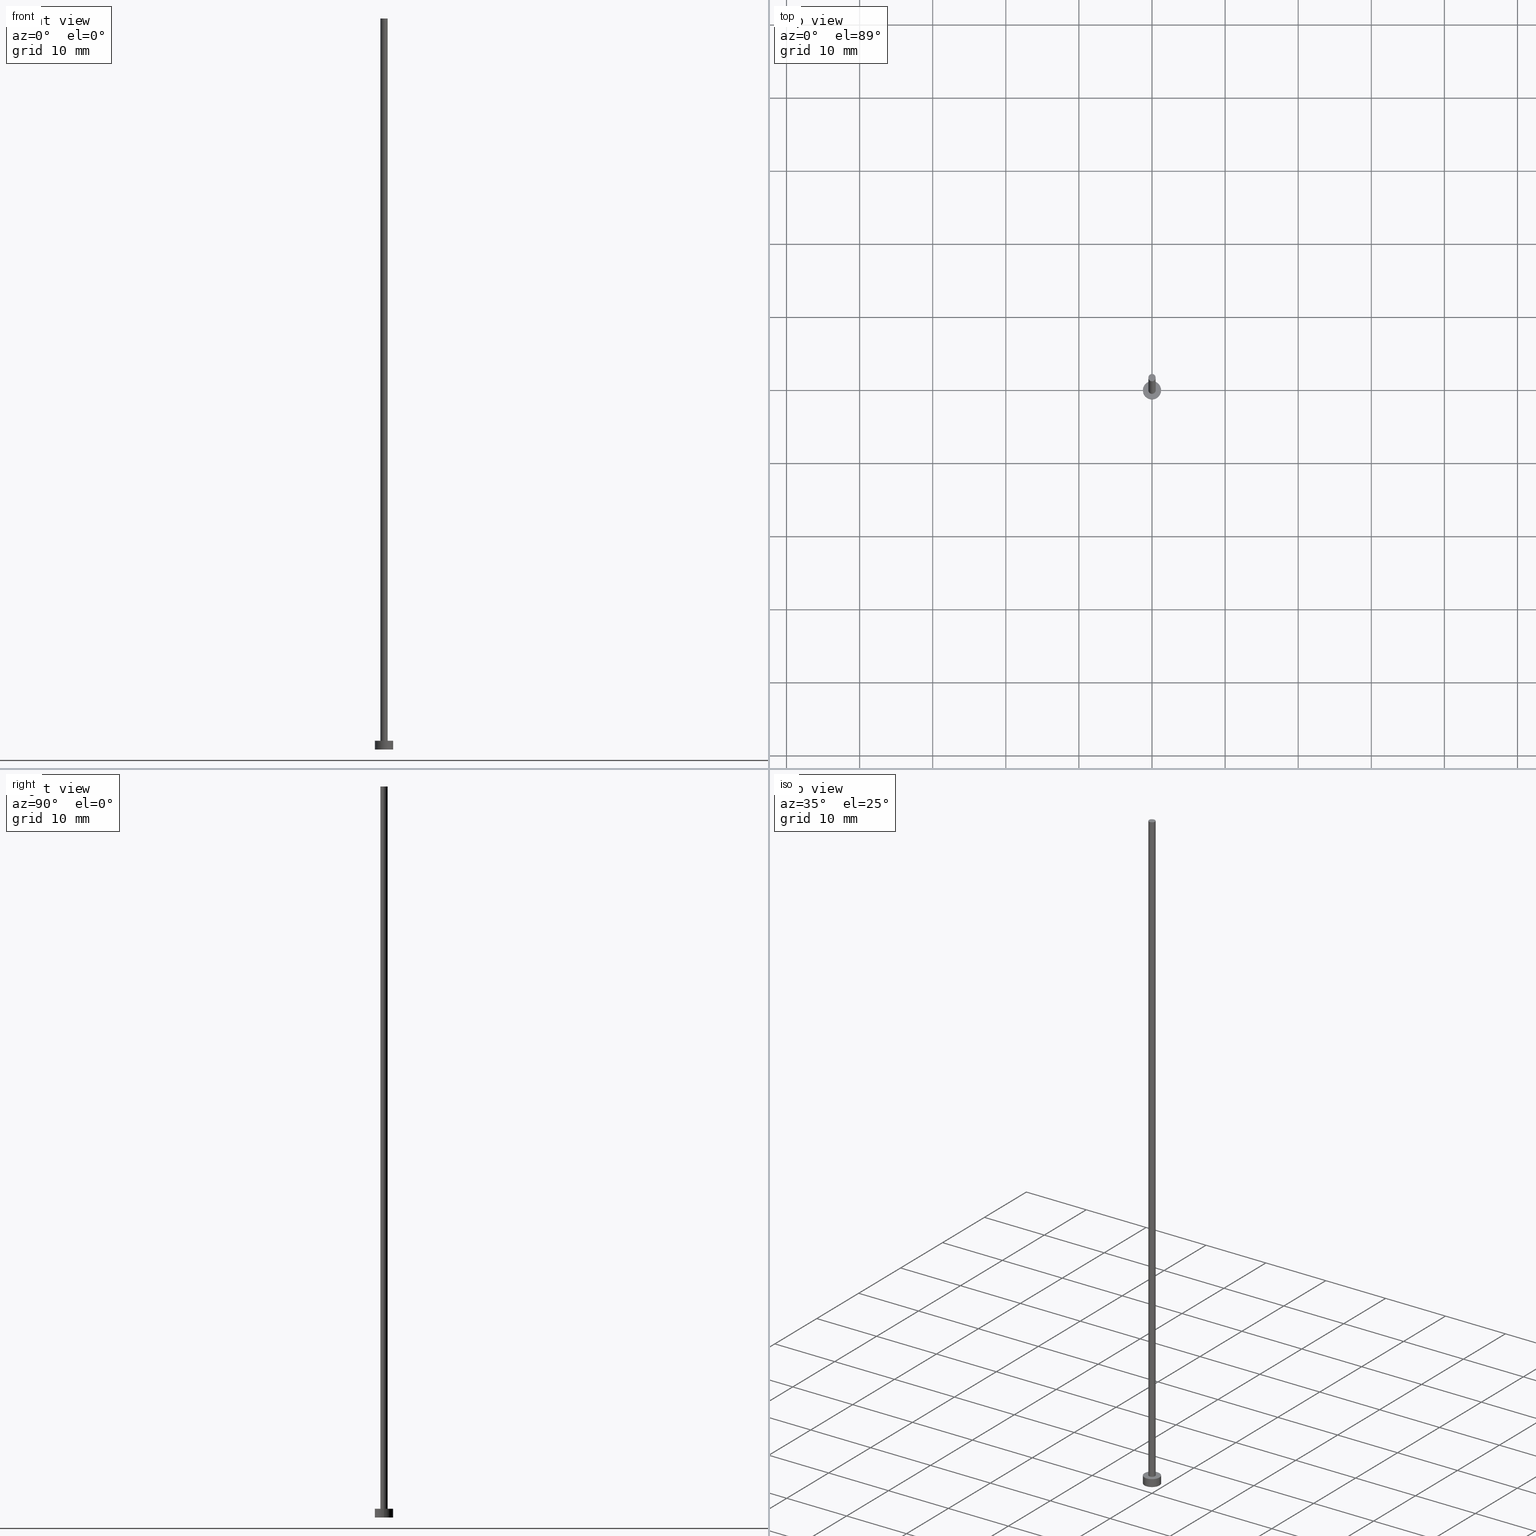
[diagram: canonical four-view strip — front | top / right | iso, engineering-drawing reading convention]
A machine part, canonical four-view strip (front | top / right | iso — engineering-drawing reading convention). The complete STEP part file that produces these views, byte-faithful:
ISO-10303-21;
HEADER;
FILE_DESCRIPTION (( 'STEP AP203' ),
    '1' );
FILE_NAME ('1bcf.STEP',
    '2023-02-12T13:00:44',
    ( '' ),
    ( '' ),
    'SwSTEP 2.0',
    'SolidWorks 2019',
    '' );
FILE_SCHEMA (( 'CONFIG_CONTROL_DESIGN' ));
ENDSEC;

DATA;
#1 = ORIENTED_EDGE ( 'NONE', *, *, #106, .F. ) ;
#2 = DIRECTION ( 'NONE',  ( 0.000000000000000000, 0.000000000000000000, 1.000000000000000000 ) ) ;
#3 = ORIENTED_EDGE ( 'NONE', *, *, #55, .F. ) ;
#4 = PERSON_AND_ORGANIZATION ( #205, #72 ) ;
#5 = ORIENTED_EDGE ( 'NONE', *, *, #201, .F. ) ;
#6 = PERSON_AND_ORGANIZATION ( #205, #72 ) ;
#7 = CARTESIAN_POINT ( 'NONE',  ( 0.000000000000000000, 0.000000000000000000, 1.199999999999999956 ) ) ;
#8 = AXIS2_PLACEMENT_3D ( 'NONE', #221, #184, #54 ) ;
#9 = CC_DESIGN_PERSON_AND_ORGANIZATION_ASSIGNMENT ( #61, #140, ( #56 ) ) ;
#10 = AXIS2_PLACEMENT_3D ( 'NONE', #91, #68, #93 ) ;
#11 = DIRECTION ( 'NONE',  ( 1.000000000000000000, 0.000000000000000000, -0.000000000000000000 ) ) ;
#12 = AXIS2_PLACEMENT_3D ( 'NONE', #165, #29, #217 ) ;
#13 = CARTESIAN_POINT ( 'NONE',  ( -0.5000000000000000000, 0.000000000000000000, 1.199999999999999956 ) ) ;
#14 = CIRCLE ( 'NONE', #84, 1.250000000000000000 ) ;
#15 = CARTESIAN_POINT ( 'NONE',  ( -1.250000000000000000, 0.000000000000000000, 1.199999999999999956 ) ) ;
#16 = VERTEX_POINT ( 'NONE', #175 ) ;
#17 = AXIS2_PLACEMENT_3D ( 'NONE', #142, #122, #176 ) ;
#18 = DATE_TIME_ROLE ( 'creation_date' ) ;
#19 = DIRECTION ( 'NONE',  ( -0.000000000000000000, -0.000000000000000000, -1.000000000000000000 ) ) ;
#20 = DATE_AND_TIME ( #41, #189 ) ;
#21 = CARTESIAN_POINT ( 'NONE',  ( 0.000000000000000000, 0.000000000000000000, 1.199999999999999956 ) ) ;
#22 = APPLICATION_CONTEXT ( 'configuration controlled 3d designs of mechanical parts and assemblies' ) ;
#23 = CARTESIAN_POINT ( 'NONE',  ( 0.000000000000000000, 0.000000000000000000, 0.000000000000000000 ) ) ;
#24 = ORIENTED_EDGE ( 'NONE', *, *, #161, .F. ) ;
#25 = MECHANICAL_CONTEXT ( 'NONE', #247, 'mechanical' ) ;
#26 = CARTESIAN_POINT ( 'NONE',  ( -1.250000000000000000, 0.000000000000000000, 1.199999999999999956 ) ) ;
#27 = APPROVAL ( #64, 'NEUR�EN�' ) ;
#28 = COORDINATED_UNIVERSAL_TIME_OFFSET ( 1, 0, .AHEAD. ) ;
#29 = DIRECTION ( 'NONE',  ( 0.000000000000000000, 0.000000000000000000, 1.000000000000000000 ) ) ;
#30 = PRODUCT ( '1bcf', '1bcf', '', ( #25 ) ) ;
#31 = DIRECTION ( 'NONE',  ( 1.000000000000000000, 0.000000000000000000, 0.000000000000000000 ) ) ;
#32 = CIRCLE ( 'NONE', #10, 0.5000000000000000000 ) ;
#33 = ADVANCED_FACE ( 'NONE', ( #45 ), #192, .T. ) ;
#34 = VERTEX_POINT ( 'NONE', #162 ) ;
#35 = EDGE_CURVE ( 'NONE', #16, #190, #232, .T. ) ;
#36 = CC_DESIGN_APPROVAL ( #27, ( #56 ) ) ;
#37 = DIRECTION ( 'NONE',  ( -1.000000000000000000, 0.000000000000000000, 0.000000000000000000 ) ) ;
#38 = ORIENTED_EDGE ( 'NONE', *, *, #126, .F. ) ;
#39 = AXIS2_PLACEMENT_3D ( 'NONE', #207, #132, #37 ) ;
#40 = EDGE_LOOP ( 'NONE', ( #226, #249, #90, #3 ) ) ;
#41 = CALENDAR_DATE ( 2023, 12, 2 ) ;
#42 = CARTESIAN_POINT ( 'NONE',  ( -0.5000000000000000000, 0.000000000000000000, 100.0000000000000000 ) ) ;
#43 = ADVANCED_FACE ( 'NONE', ( #107, #239 ), #160, .T. ) ;
#44 = ORIENTED_EDGE ( 'NONE', *, *, #219, .F. ) ;
#45 = FACE_OUTER_BOUND ( 'NONE', #141, .T. ) ;
#46 = CIRCLE ( 'NONE', #12, 0.5000000000000000000 ) ;
#47 = AXIS2_PLACEMENT_3D ( 'NONE', #21, #2, #200 ) ;
#48 = ORIENTED_EDGE ( 'NONE', *, *, #139, .F. ) ;
#49 = FACE_OUTER_BOUND ( 'NONE', #120, .T. ) ;
#50 = PERSON_AND_ORGANIZATION_ROLE ( 'creator' ) ;
#51 = LOCAL_TIME ( 14, 0, 44.00000000000000000, #28 ) ;
#52 = CC_DESIGN_DATE_AND_TIME_ASSIGNMENT ( #129, #18, ( #117 ) ) ;
#53 = AXIS2_PLACEMENT_3D ( 'NONE', #118, #215, #83 ) ;
#54 = DIRECTION ( 'NONE',  ( -1.000000000000000000, 0.000000000000000000, 0.000000000000000000 ) ) ;
#55 = EDGE_CURVE ( 'NONE', #190, #63, #133, .T. ) ;
#56 = SECURITY_CLASSIFICATION ( '', '', #123 ) ;
#57 = AXIS2_PLACEMENT_3D ( 'NONE', #7, #19, #102 ) ;
#58 = CYLINDRICAL_SURFACE ( 'NONE', #39, 0.5000000000000000000 ) ;
#59 = FACE_OUTER_BOUND ( 'NONE', #85, .T. ) ;
#60 = CARTESIAN_POINT ( 'NONE',  ( -1.250000000000000000, 0.000000000000000000, 0.000000000000000000 ) ) ;
#61 = PERSON_AND_ORGANIZATION ( #205, #72 ) ;
#62 = APPLICATION_PROTOCOL_DEFINITION ( 'international standard', 'config_control_design', 1994, #247 ) ;
#63 = VERTEX_POINT ( 'NONE', #60 ) ;
#64 = APPROVAL_STATUS ( 'not_yet_approved' ) ;
#65 = DATE_AND_TIME ( #138, #212 ) ;
#66 = CARTESIAN_POINT ( 'NONE',  ( 0.5000000000000000000, 6.123233995736766036E-17, 1.199999999999999956 ) ) ;
#67 = SHAPE_DEFINITION_REPRESENTATION ( #69, #70 ) ;
#68 = DIRECTION ( 'NONE',  ( 0.000000000000000000, 0.000000000000000000, 1.000000000000000000 ) ) ;
#69 = PRODUCT_DEFINITION_SHAPE ( 'NONE', 'NONE',  #117 ) ;
#70 = ADVANCED_BREP_SHAPE_REPRESENTATION ( '1bcf', ( #228, #187 ), #154 ) ;
#71 = DIRECTION ( 'NONE',  ( 0.000000000000000000, 0.000000000000000000, 1.000000000000000000 ) ) ;
#72 = ORGANIZATION ( 'NEUR�EN�', 'NEUR�EN�', '' ) ;
#73 = CC_DESIGN_DATE_AND_TIME_ASSIGNMENT ( #86, #194, ( #56 ) ) ;
#74 = CARTESIAN_POINT ( 'NONE',  ( 0.000000000000000000, 0.000000000000000000, 0.000000000000000000 ) ) ;
#75 = CARTESIAN_POINT ( 'NONE',  ( 0.5000000000000000000, 6.123233995736766036E-17, 100.0000000000000000 ) ) ;
#76 = CC_DESIGN_SECURITY_CLASSIFICATION ( #56, ( #203 ) ) ;
#77 = PERSON_AND_ORGANIZATION_ROLE ( 'creator' ) ;
#78 = CC_DESIGN_PERSON_AND_ORGANIZATION_ASSIGNMENT ( #216, #234, ( #203 ) ) ;
#79 = LOCAL_TIME ( 14, 0, 44.00000000000000000, #237 ) ;
#80 = CIRCLE ( 'NONE', #254, 0.5000000000000000000 ) ;
#81 = EDGE_LOOP ( 'NONE', ( #173, #24 ) ) ;
#82 = PERSON_AND_ORGANIZATION ( #205, #72 ) ;
#83 = DIRECTION ( 'NONE',  ( 1.000000000000000000, 0.000000000000000000, 0.000000000000000000 ) ) ;
#84 = AXIS2_PLACEMENT_3D ( 'NONE', #166, #71, #96 ) ;
#85 = EDGE_LOOP ( 'NONE', ( #5, #236, #105, #233 ) ) ;
#86 = DATE_AND_TIME ( #218, #79 ) ;
#87 = PERSON_AND_ORGANIZATION_ROLE ( 'design_owner' ) ;
#88 = CC_DESIGN_PERSON_AND_ORGANIZATION_ASSIGNMENT ( #4, #87, ( #30 ) ) ;
#89 = DIRECTION ( 'NONE',  ( 0.000000000000000000, 0.000000000000000000, 1.000000000000000000 ) ) ;
#90 = ORIENTED_EDGE ( 'NONE', *, *, #161, .T. ) ;
#91 = CARTESIAN_POINT ( 'NONE',  ( 0.000000000000000000, 0.000000000000000000, 1.199999999999999956 ) ) ;
#92 = ADVANCED_FACE ( 'NONE', ( #59 ), #179, .T. ) ;
#93 = DIRECTION ( 'NONE',  ( 1.000000000000000000, 0.000000000000000000, 0.000000000000000000 ) ) ;
#94 = FACE_OUTER_BOUND ( 'NONE', #40, .T. ) ;
#95 = DIRECTION ( 'NONE',  ( 0.000000000000000000, 0.000000000000000000, 1.000000000000000000 ) ) ;
#96 = DIRECTION ( 'NONE',  ( 1.000000000000000000, 0.000000000000000000, 0.000000000000000000 ) ) ;
#97 = CARTESIAN_POINT ( 'NONE',  ( -0.5000000000000000000, 0.000000000000000000, 100.0000000000000000 ) ) ;
#98 = EDGE_LOOP ( 'NONE', ( #48, #38 ) ) ;
#99 = PERSON_AND_ORGANIZATION ( #205, #72 ) ;
#100 = DIRECTION ( 'NONE',  ( 1.000000000000000000, 0.000000000000000000, 0.000000000000000000 ) ) ;
#101 = CC_DESIGN_PERSON_AND_ORGANIZATION_ASSIGNMENT ( #204, #50, ( #203 ) ) ;
#102 = DIRECTION ( 'NONE',  ( -1.000000000000000000, 0.000000000000000000, 0.000000000000000000 ) ) ;
#103 = APPROVAL_DATE_TIME ( #20, #157 ) ;
#104 = APPROVAL_PERSON_ORGANIZATION ( #82, #27, #211 ) ;
#105 = ORIENTED_EDGE ( 'NONE', *, *, #55, .T. ) ;
#106 = EDGE_CURVE ( 'NONE', #251, #137, #209, .T. ) ;
#107 = FACE_BOUND ( 'NONE', #98, .T. ) ;
#108 = CARTESIAN_POINT ( 'NONE',  ( 0.000000000000000000, 0.000000000000000000, 100.0000000000000000 ) ) ;
#109 = DIRECTION ( 'NONE',  ( -0.000000000000000000, -0.000000000000000000, -1.000000000000000000 ) ) ;
#110 = DIRECTION ( 'NONE',  ( -0.000000000000000000, -0.000000000000000000, -1.000000000000000000 ) ) ;
#111 = CALENDAR_DATE ( 2023, 12, 2 ) ;
#112 = CALENDAR_DATE ( 2023, 12, 2 ) ;
#113 = EDGE_CURVE ( 'NONE', #190, #16, #191, .T. ) ;
#114 = VECTOR ( 'NONE', #119, 1000.000000000000000 ) ;
#115 = ORIENTED_EDGE ( 'NONE', *, *, #144, .T. ) ;
#116 = CARTESIAN_POINT ( 'NONE',  ( 0.000000000000000000, 0.000000000000000000, 0.000000000000000000 ) ) ;
#117 = PRODUCT_DEFINITION ( 'NEZN�M�', '', #203, #163 ) ;
#118 = CARTESIAN_POINT ( 'NONE',  ( 0.000000000000000000, 0.000000000000000000, 1.199999999999999956 ) ) ;
#119 = DIRECTION ( 'NONE',  ( -0.000000000000000000, -0.000000000000000000, -1.000000000000000000 ) ) ;
#120 = EDGE_LOOP ( 'NONE', ( #193, #44, #253, #246 ) ) ;
#121 = CIRCLE ( 'NONE', #188, 0.5000000000000000000 ) ;
#122 = DIRECTION ( 'NONE',  ( 0.000000000000000000, 0.000000000000000000, 1.000000000000000000 ) ) ;
#123 = SECURITY_CLASSIFICATION_LEVEL ( 'unclassified' ) ;
#124 = CYLINDRICAL_SURFACE ( 'NONE', #135, 0.5000000000000000000 ) ;
#125 = CC_DESIGN_PERSON_AND_ORGANIZATION_ASSIGNMENT ( #128, #77, ( #117 ) ) ;
#126 = EDGE_CURVE ( 'NONE', #202, #137, #80, .T. ) ;
#127 = LINE ( 'NONE', #75, #149 ) ;
#128 = PERSON_AND_ORGANIZATION ( #205, #72 ) ;
#129 = DATE_AND_TIME ( #112, #245 ) ;
#130 = ADVANCED_FACE ( 'NONE', ( #181 ), #185, .F. ) ;
#131 = ORIENTED_EDGE ( 'NONE', *, *, #144, .F. ) ;
#132 = DIRECTION ( 'NONE',  ( -0.000000000000000000, -0.000000000000000000, -1.000000000000000000 ) ) ;
#133 = LINE ( 'NONE', #26, #155 ) ;
#134 = APPROVAL_ROLE ( '' ) ;
#135 = AXIS2_PLACEMENT_3D ( 'NONE', #195, #110, #180 ) ;
#136 = AXIS2_PLACEMENT_3D ( 'NONE', #108, #89, #210 ) ;
#137 = VERTEX_POINT ( 'NONE', #13 ) ;
#138 = CALENDAR_DATE ( 2023, 12, 2 ) ;
#139 = EDGE_CURVE ( 'NONE', #137, #202, #32, .T. ) ;
#140 = PERSON_AND_ORGANIZATION_ROLE ( 'classification_officer' ) ;
#141 = EDGE_LOOP ( 'NONE', ( #156, #115 ) ) ;
#142 = CARTESIAN_POINT ( 'NONE',  ( 0.000000000000000000, 0.000000000000000000, 1.199999999999999956 ) ) ;
#143 = AXIS2_PLACEMENT_3D ( 'NONE', #74, #95, #11 ) ;
#144 = EDGE_CURVE ( 'NONE', #34, #251, #121, .T. ) ;
#145 = DIRECTION ( 'NONE',  ( 0.000000000000000000, 0.000000000000000000, 1.000000000000000000 ) ) ;
#146 = CYLINDRICAL_SURFACE ( 'NONE', #8, 1.250000000000000000 ) ;
#147 = DIRECTION ( 'NONE',  ( -0.000000000000000000, -0.000000000000000000, -1.000000000000000000 ) ) ;
#148 = COORDINATED_UNIVERSAL_TIME_OFFSET ( 1, 0, .AHEAD. ) ;
#149 = VECTOR ( 'NONE', #167, 1000.000000000000000 ) ;
#150 = VERTEX_POINT ( 'NONE', #223 ) ;
#151 = CIRCLE ( 'NONE', #252, 1.250000000000000000 ) ;
#152 = PRODUCT_RELATED_PRODUCT_CATEGORY ( 'detail', '', ( #30 ) ) ;
#153 = CLOSED_SHELL ( 'NONE', ( #240, #174, #92, #43, #130, #229, #33 ) ) ;
#154 =( GEOMETRIC_REPRESENTATION_CONTEXT ( 3 ) GLOBAL_UNCERTAINTY_ASSIGNED_CONTEXT ( ( #214 ) ) GLOBAL_UNIT_ASSIGNED_CONTEXT ( ( #186, #169, #250 ) ) REPRESENTATION_CONTEXT ( 'NONE', 'WORKASPACE' ) );
#155 = VECTOR ( 'NONE', #109, 1000.000000000000000 ) ;
#156 = ORIENTED_EDGE ( 'NONE', *, *, #219, .T. ) ;
#157 = APPROVAL ( #172, 'NEUR�EN�' ) ;
#158 = DIRECTION ( 'NONE',  ( 0.000000000000000000, 0.000000000000000000, 1.000000000000000000 ) ) ;
#159 = COORDINATED_UNIVERSAL_TIME_OFFSET ( 1, 0, .AHEAD. ) ;
#160 = PLANE ( 'NONE',  #17 ) ;
#161 = EDGE_CURVE ( 'NONE', #150, #63, #14, .T. ) ;
#162 = CARTESIAN_POINT ( 'NONE',  ( 0.5000000000000000000, 6.123233995736766036E-17, 100.0000000000000000 ) ) ;
#163 = DESIGN_CONTEXT ( 'detailed design', #22, 'design' ) ;
#164 = CARTESIAN_POINT ( 'NONE',  ( 0.000000000000000000, 0.000000000000000000, 100.0000000000000000 ) ) ;
#165 = CARTESIAN_POINT ( 'NONE',  ( 0.000000000000000000, 0.000000000000000000, 100.0000000000000000 ) ) ;
#166 = CARTESIAN_POINT ( 'NONE',  ( 0.000000000000000000, 0.000000000000000000, 0.000000000000000000 ) ) ;
#167 = DIRECTION ( 'NONE',  ( -0.000000000000000000, -0.000000000000000000, -1.000000000000000000 ) ) ;
#168 = ORIENTED_EDGE ( 'NONE', *, *, #126, .T. ) ;
#169 =( NAMED_UNIT ( * ) PLANE_ANGLE_UNIT ( ) SI_UNIT ( $, .RADIAN. ) );
#170 = ORIENTED_EDGE ( 'NONE', *, *, #35, .T. ) ;
#171 = ORIENTED_EDGE ( 'NONE', *, *, #113, .T. ) ;
#172 = APPROVAL_STATUS ( 'not_yet_approved' ) ;
#173 = ORIENTED_EDGE ( 'NONE', *, *, #255, .F. ) ;
#174 = ADVANCED_FACE ( 'NONE', ( #94 ), #146, .T. ) ;
#175 = CARTESIAN_POINT ( 'NONE',  ( 1.250000000000000000, 1.530808498934191571E-16, 1.199999999999999956 ) ) ;
#176 = DIRECTION ( 'NONE',  ( 1.000000000000000000, 0.000000000000000000, -0.000000000000000000 ) ) ;
#177 = APPROVAL_PERSON_ORGANIZATION ( #99, #157, #134 ) ;
#178 = DIRECTION ( 'NONE',  ( 1.000000000000000000, 0.000000000000000000, 0.000000000000000000 ) ) ;
#179 = CYLINDRICAL_SURFACE ( 'NONE', #57, 1.250000000000000000 ) ;
#180 = DIRECTION ( 'NONE',  ( -1.000000000000000000, 0.000000000000000000, 0.000000000000000000 ) ) ;
#181 = FACE_OUTER_BOUND ( 'NONE', #81, .T. ) ;
#182 = CARTESIAN_POINT ( 'NONE',  ( 0.000000000000000000, 0.000000000000000000, 1.199999999999999956 ) ) ;
#183 = APPROVAL_ROLE ( '' ) ;
#184 = DIRECTION ( 'NONE',  ( -0.000000000000000000, -0.000000000000000000, -1.000000000000000000 ) ) ;
#185 = PLANE ( 'NONE',  #143 ) ;
#186 =( LENGTH_UNIT ( ) NAMED_UNIT ( * ) SI_UNIT ( .MILLI., .METRE. ) );
#187 = AXIS2_PLACEMENT_3D ( 'NONE', #23, #158, #178 ) ;
#188 = AXIS2_PLACEMENT_3D ( 'NONE', #164, #244, #242 ) ;
#189 = LOCAL_TIME ( 14, 0, 44.00000000000000000, #208 ) ;
#190 = VERTEX_POINT ( 'NONE', #15 ) ;
#191 = CIRCLE ( 'NONE', #47, 1.250000000000000000 ) ;
#192 = PLANE ( 'NONE',  #136 ) ;
#193 = ORIENTED_EDGE ( 'NONE', *, *, #197, .F. ) ;
#194 = DATE_TIME_ROLE ( 'classification_date' ) ;
#195 = CARTESIAN_POINT ( 'NONE',  ( 0.000000000000000000, 0.000000000000000000, 100.0000000000000000 ) ) ;
#196 = VECTOR ( 'NONE', #147, 1000.000000000000000 ) ;
#197 = EDGE_CURVE ( 'NONE', #34, #202, #127, .T. ) ;
#198 = CARTESIAN_POINT ( 'NONE',  ( 1.250000000000000000, 1.530808498934191571E-16, 1.199999999999999956 ) ) ;
#199 = LINE ( 'NONE', #198, #196 ) ;
#200 = DIRECTION ( 'NONE',  ( 1.000000000000000000, 0.000000000000000000, 0.000000000000000000 ) ) ;
#201 = EDGE_CURVE ( 'NONE', #16, #150, #199, .T. ) ;
#202 = VERTEX_POINT ( 'NONE', #66 ) ;
#203 = PRODUCT_DEFINITION_FORMATION_WITH_SPECIFIED_SOURCE ( 'LIBOVOLN�', '', #30, .NOT_KNOWN. ) ;
#204 = PERSON_AND_ORGANIZATION ( #205, #72 ) ;
#205 = PERSON ( 'NEUR�EN�', 'NEUR�EN�', 'NEUR�EN�', ('NEUR�EN�'), ('NEUR�EN�'), ('NEUR�EN�') ) ;
#206 = ORIENTED_EDGE ( 'NONE', *, *, #197, .T. ) ;
#207 = CARTESIAN_POINT ( 'NONE',  ( 0.000000000000000000, 0.000000000000000000, 100.0000000000000000 ) ) ;
#208 = COORDINATED_UNIVERSAL_TIME_OFFSET ( 1, 0, .AHEAD. ) ;
#209 = LINE ( 'NONE', #42, #114 ) ;
#210 = DIRECTION ( 'NONE',  ( 1.000000000000000000, 0.000000000000000000, -0.000000000000000000 ) ) ;
#211 = APPROVAL_ROLE ( '' ) ;
#212 = LOCAL_TIME ( 14, 0, 44.00000000000000000, #159 ) ;
#213 = EDGE_LOOP ( 'NONE', ( #171, #170 ) ) ;
#214 = UNCERTAINTY_MEASURE_WITH_UNIT (LENGTH_MEASURE( 1.000000000000000082E-05 ), #186, 'distance_accuracy_value', 'NONE');
#215 = DIRECTION ( 'NONE',  ( 0.000000000000000000, 0.000000000000000000, 1.000000000000000000 ) ) ;
#216 = PERSON_AND_ORGANIZATION ( #205, #72 ) ;
#217 = DIRECTION ( 'NONE',  ( 1.000000000000000000, 0.000000000000000000, 0.000000000000000000 ) ) ;
#218 = CALENDAR_DATE ( 2023, 12, 2 ) ;
#219 = EDGE_CURVE ( 'NONE', #251, #34, #46, .T. ) ;
#220 = CC_DESIGN_APPROVAL ( #248, ( #117 ) ) ;
#221 = CARTESIAN_POINT ( 'NONE',  ( 0.000000000000000000, 0.000000000000000000, 1.199999999999999956 ) ) ;
#222 = DATE_AND_TIME ( #111, #51 ) ;
#223 = CARTESIAN_POINT ( 'NONE',  ( 1.250000000000000000, 1.530808498934191571E-16, 0.000000000000000000 ) ) ;
#224 = APPROVAL_DATE_TIME ( #222, #248 ) ;
#225 = DIRECTION ( 'NONE',  ( 0.000000000000000000, 0.000000000000000000, 1.000000000000000000 ) ) ;
#226 = ORIENTED_EDGE ( 'NONE', *, *, #35, .F. ) ;
#227 = FACE_OUTER_BOUND ( 'NONE', #230, .T. ) ;
#228 = MANIFOLD_SOLID_BREP ( 'P�idat vysunut�m3', #153 ) ;
#229 = ADVANCED_FACE ( 'NONE', ( #49 ), #124, .T. ) ;
#230 = EDGE_LOOP ( 'NONE', ( #131, #206, #168, #1 ) ) ;
#231 = APPROVAL_DATE_TIME ( #65, #27 ) ;
#232 = CIRCLE ( 'NONE', #53, 1.250000000000000000 ) ;
#233 = ORIENTED_EDGE ( 'NONE', *, *, #255, .T. ) ;
#234 = PERSON_AND_ORGANIZATION_ROLE ( 'design_supplier' ) ;
#235 = APPLICATION_PROTOCOL_DEFINITION ( 'international standard', 'config_control_design', 1994, #22 ) ;
#236 = ORIENTED_EDGE ( 'NONE', *, *, #113, .F. ) ;
#237 = COORDINATED_UNIVERSAL_TIME_OFFSET ( 1, 0, .AHEAD. ) ;
#238 = APPROVAL_STATUS ( 'not_yet_approved' ) ;
#239 = FACE_OUTER_BOUND ( 'NONE', #213, .T. ) ;
#240 = ADVANCED_FACE ( 'NONE', ( #227 ), #58, .T. ) ;
#241 = CC_DESIGN_APPROVAL ( #157, ( #203 ) ) ;
#242 = DIRECTION ( 'NONE',  ( 1.000000000000000000, 0.000000000000000000, 0.000000000000000000 ) ) ;
#243 = APPROVAL_PERSON_ORGANIZATION ( #6, #248, #183 ) ;
#244 = DIRECTION ( 'NONE',  ( 0.000000000000000000, 0.000000000000000000, 1.000000000000000000 ) ) ;
#245 = LOCAL_TIME ( 14, 0, 44.00000000000000000, #148 ) ;
#246 = ORIENTED_EDGE ( 'NONE', *, *, #139, .T. ) ;
#247 = APPLICATION_CONTEXT ( 'configuration controlled 3d designs of mechanical parts and assemblies' ) ;
#248 = APPROVAL ( #238, 'NEUR�EN�' ) ;
#249 = ORIENTED_EDGE ( 'NONE', *, *, #201, .T. ) ;
#250 =( NAMED_UNIT ( * ) SI_UNIT ( $, .STERADIAN. ) SOLID_ANGLE_UNIT ( ) );
#251 = VERTEX_POINT ( 'NONE', #97 ) ;
#252 = AXIS2_PLACEMENT_3D ( 'NONE', #116, #225, #100 ) ;
#253 = ORIENTED_EDGE ( 'NONE', *, *, #106, .T. ) ;
#254 = AXIS2_PLACEMENT_3D ( 'NONE', #182, #145, #31 ) ;
#255 = EDGE_CURVE ( 'NONE', #63, #150, #151, .T. ) ;
ENDSEC;
END-ISO-10303-21;
